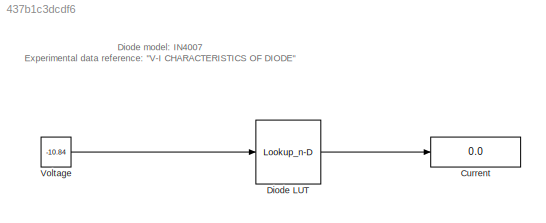
MODEL slx_437b1c3dcdf6
KIND model
CONFIG AbsTol = auto
CONFIG EnableMultiTasking = off
CONFIG FixedStep = auto
CONFIG MaxStep = auto
CONFIG MinStep = auto
CONFIG RelTol = 1e-3
CONFIG SampleTimeConstraint = Unconstrained
CONFIG SolverName = VariableStepAuto
CONFIG StartTime = 0.0
CONFIG StopTime = 10.0
BLOCK [Display] Current
  Decimation = 1
  Ports = [1]
BLOCK [Lookup_n-D] Diode LUT
  BreakpointsForDimension1 = [-29.9 -27.8 -25.7 -23.6 -21.3 -19.38 -17.14 -15.23 -12.92 -10.84 -8.89 -7.13 -4.69 -2.3 -0.59 0 0.54 0.66 0.68 0.70 0.71 0.72 0.73 0.74 0.75 0.76]
  InputPortMap = u0
  InternalRulePriority = Speed
  NumberOfTableDimensions = 1
  Ports = [1, 1]
  RndMeth = Simplest
  Table = [-28 -26 -24 -22 -20 -18 -16 -14 -12 -10 -8 -6 -4 -2 0 0 0 5 10 15 20 25 30 45 70 95]
BLOCK [Constant] Voltage
  Value = -10.84
ANNOTATION (root): Diode model: IN4007 Experimental data reference: "V-I CHARACTERISTICS OF DIODE"
LINE Diode LUT:1 -> Current:1
LINE Voltage:1 -> Diode LUT:1
